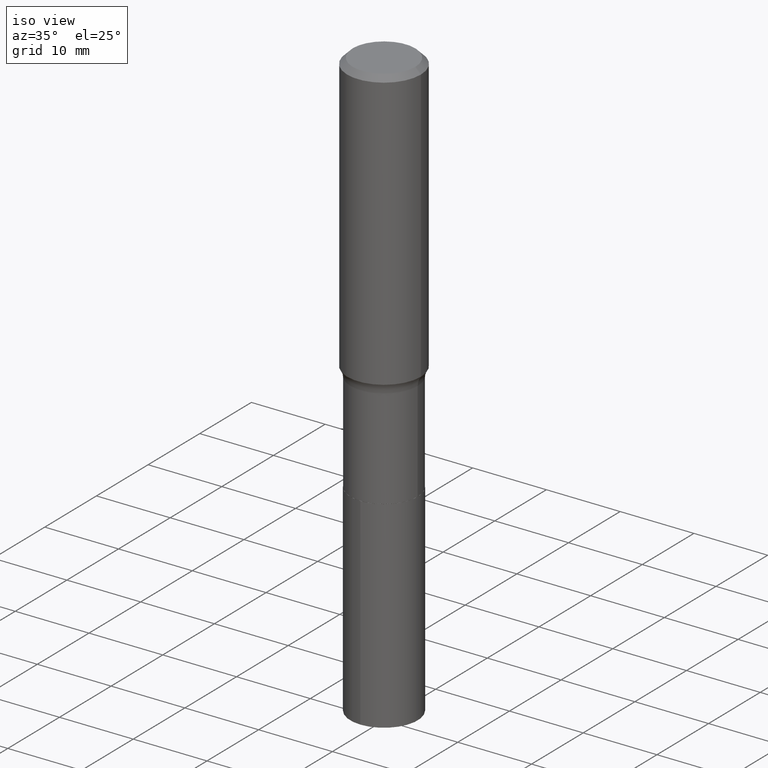
[diagram: clean part render]
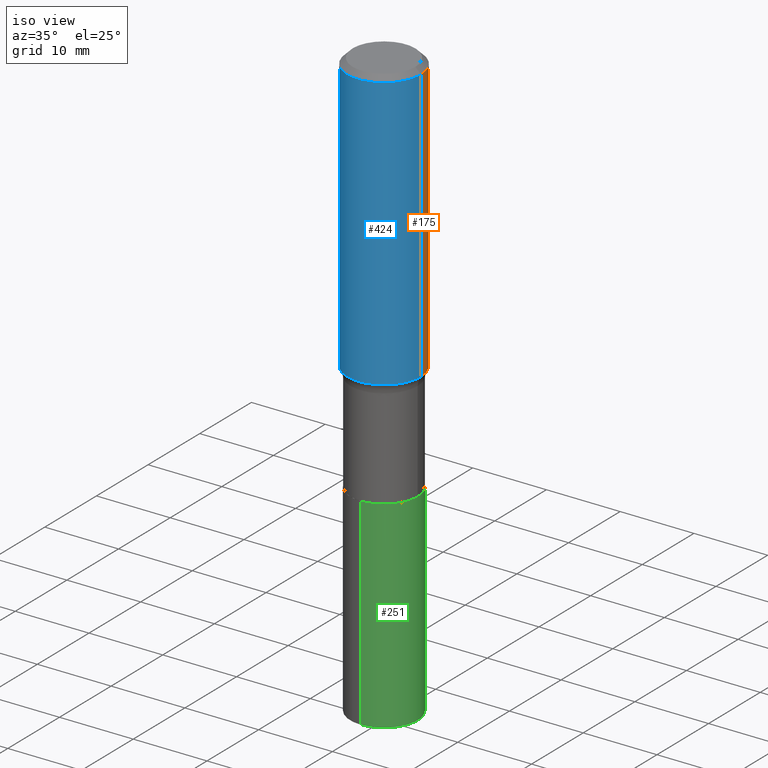
[diagram: same view with three faces highlighted in distinct colors, each labeled with its STEP entity id]
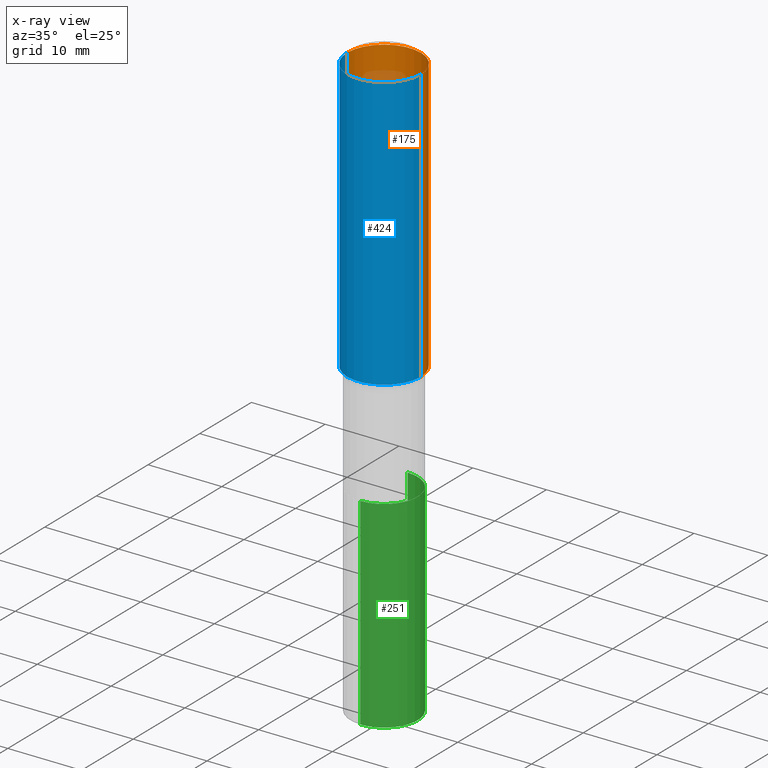
[diagram: x-ray of the same camera — body ghosted, the three highlighted faces saturated]
A machine part, iso view with three faces highlighted in distinct colors.
The next image is the same camera in x-ray (body ghosted, the three faces saturated) — at least one of them is partly hidden behind the body in this view.
Their STEP definitions:

[orange] entity #175 — the highlighted cylindrical surface (partial cylindrical patch) has radius 5 mm, axis along (-0, 0, 1).
#16 = DIRECTION ( 'NONE',  ( -2.445468806185136877E-29, 3.491481338843145188E-15, 1.000000000000000000 ) ) ;
#38 = VERTEX_POINT ( 'NONE', #92 ) ;
#48 = LINE ( 'NONE', #257, #168 ) ;
#51 = CARTESIAN_POINT ( 'NONE',  ( -0.1968500000000001082, 1.398703375343757985E-15, -9.682923725166787881E-30 ) ) ;
#57 = AXIS2_PLACEMENT_3D ( 'NONE', #219, #145, #438 ) ;
#60 = ORIENTED_EDGE ( 'NONE', *, *, #279, .T. ) ;
#61 = DIRECTION ( 'NONE',  ( -2.445468806185136597E-29, 3.491481338843145583E-15, 1.000000000000000000 ) ) ;
#71 = ORIENTED_EDGE ( 'NONE', *, *, #365, .T. ) ;
#92 = CARTESIAN_POINT ( 'NONE',  ( -0.1968500000000000250, -1.249116074655707760E-15, -0.02952750000000018207 ) ) ;
#99 = CIRCLE ( 'NONE', #232, 0.1968500000000000250 ) ;
#112 = VECTOR ( 'NONE', #117, 39.37007874015748143 ) ;
#117 = DIRECTION ( 'NONE',  ( -2.445468806185136877E-29, 3.491481338843145188E-15, 1.000000000000000000 ) ) ;
#126 = VERTEX_POINT ( 'NONE', #190 ) ;
#145 = DIRECTION ( 'NONE',  ( -2.445468806185136597E-29, 3.491481338843145583E-15, 1.000000000000000000 ) ) ;
#168 = VECTOR ( 'NONE', #16, 39.37007874015748143 ) ;
#175 = ADVANCED_FACE ( 'NONE', ( #390 ), #400, .T. ) ;
#179 = VERTEX_POINT ( 'NONE', #215 ) ;
#190 = CARTESIAN_POINT ( 'NONE',  ( 0.1968500000000000250, -1.477690918335233294E-15, -0.02952750000000018207 ) ) ;
#198 = CARTESIAN_POINT ( 'NONE',  ( 0.1968500000000001360, -6.567140387868782202E-15, -1.487203762769277127 ) ) ;
#215 = CARTESIAN_POINT ( 'NONE',  ( -0.1968500000000001360, -3.793840809422482017E-15, -1.487203762769277127 ) ) ;
#219 = CARTESIAN_POINT ( 'NONE',  ( 0.000000000000000000, 0.000000000000000000, 0.000000000000000000 ) ) ;
#232 = AXIS2_PLACEMENT_3D ( 'NONE', #368, #61, #350 ) ;
#257 = CARTESIAN_POINT ( 'NONE',  ( 0.1968500000000001082, -1.374596203102542397E-15, 9.598753983154305062E-30 ) ) ;
#264 = DIRECTION ( 'NONE',  ( -2.445468806185136597E-29, 3.491481338843145583E-15, 1.000000000000000000 ) ) ;
#275 = AXIS2_PLACEMENT_3D ( 'NONE', #306, #264, #405 ) ;
#279 = EDGE_CURVE ( 'NONE', #179, #38, #446, .T. ) ;
#280 = VERTEX_POINT ( 'NONE', #198 ) ;
#292 = ORIENTED_EDGE ( 'NONE', *, *, #381, .F. ) ;
#306 = CARTESIAN_POINT ( 'NONE',  ( 3.636910410293427302E-29, -5.192544184766240594E-15, -1.487203762769277127 ) ) ;
#328 = EDGE_LOOP ( 'NONE', ( #71, #60, #394, #292 ) ) ;
#338 = CIRCLE ( 'NONE', #275, 0.1968500000000001915 ) ;
#350 = DIRECTION ( 'NONE',  ( 1.000000000000000000, -6.982962677686265922E-15, 0.000000000000000000 ) ) ;
#365 = EDGE_CURVE ( 'NONE', #280, #179, #338, .T. ) ;
#368 = CARTESIAN_POINT ( 'NONE',  ( 7.220858017463206858E-31, -1.030947152326916240E-16, -0.02952750000000018207 ) ) ;
#381 = EDGE_CURVE ( 'NONE', #280, #126, #48, .T. ) ;
#390 = FACE_OUTER_BOUND ( 'NONE', #328, .T. ) ;
#394 = ORIENTED_EDGE ( 'NONE', *, *, #428, .F. ) ;
#400 = CYLINDRICAL_SURFACE ( 'NONE', #57, 0.1968500000000001082 ) ;
#405 = DIRECTION ( 'NONE',  ( 1.000000000000000000, -6.982962677686266711E-15, 0.000000000000000000 ) ) ;
#428 = EDGE_CURVE ( 'NONE', #126, #38, #99, .T. ) ;
#438 = DIRECTION ( 'NONE',  ( 1.000000000000000000, -6.982962677686266711E-15, 4.876176775795935793E-29 ) ) ;
#446 = LINE ( 'NONE', #51, #112 ) ;

[blue] entity #424 — the highlighted cylindrical surface (partial cylindrical patch) has radius 5 mm, axis along (-0, 0, 1).
#1 = ORIENTED_EDGE ( 'NONE', *, *, #279, .F. ) ;
#5 = AXIS2_PLACEMENT_3D ( 'NONE', #443, #333, #18 ) ;
#16 = DIRECTION ( 'NONE',  ( -2.445468806185136877E-29, 3.491481338843145188E-15, 1.000000000000000000 ) ) ;
#18 = DIRECTION ( 'NONE',  ( 1.000000000000000000, -6.982962677686266711E-15, 0.000000000000000000 ) ) ;
#38 = VERTEX_POINT ( 'NONE', #92 ) ;
#48 = LINE ( 'NONE', #257, #168 ) ;
#51 = CARTESIAN_POINT ( 'NONE',  ( -0.1968500000000001082, 1.398703375343757985E-15, -9.682923725166787881E-30 ) ) ;
#79 = DIRECTION ( 'NONE',  ( 1.000000000000000000, -6.982962677686266711E-15, 4.876176775795935793E-29 ) ) ;
#83 = DIRECTION ( 'NONE',  ( -2.445468806185136597E-29, 3.491481338843145583E-15, 1.000000000000000000 ) ) ;
#92 = CARTESIAN_POINT ( 'NONE',  ( -0.1968500000000000250, -1.249116074655707760E-15, -0.02952750000000018207 ) ) ;
#112 = VECTOR ( 'NONE', #117, 39.37007874015748143 ) ;
#114 = CARTESIAN_POINT ( 'NONE',  ( 0.000000000000000000, 0.000000000000000000, 0.000000000000000000 ) ) ;
#117 = DIRECTION ( 'NONE',  ( -2.445468806185136877E-29, 3.491481338843145188E-15, 1.000000000000000000 ) ) ;
#126 = VERTEX_POINT ( 'NONE', #190 ) ;
#168 = VECTOR ( 'NONE', #16, 39.37007874015748143 ) ;
#179 = VERTEX_POINT ( 'NONE', #215 ) ;
#180 = ORIENTED_EDGE ( 'NONE', *, *, #212, .T. ) ;
#190 = CARTESIAN_POINT ( 'NONE',  ( 0.1968500000000000250, -1.477690918335233294E-15, -0.02952750000000018207 ) ) ;
#196 = AXIS2_PLACEMENT_3D ( 'NONE', #114, #261, #79 ) ;
#198 = CARTESIAN_POINT ( 'NONE',  ( 0.1968500000000001360, -6.567140387868782202E-15, -1.487203762769277127 ) ) ;
#202 = CIRCLE ( 'NONE', #5, 0.1968500000000001915 ) ;
#209 = AXIS2_PLACEMENT_3D ( 'NONE', #298, #83, #340 ) ;
#212 = EDGE_CURVE ( 'NONE', #179, #280, #202, .T. ) ;
#214 = ORIENTED_EDGE ( 'NONE', *, *, #381, .T. ) ;
#215 = CARTESIAN_POINT ( 'NONE',  ( -0.1968500000000001360, -3.793840809422482017E-15, -1.487203762769277127 ) ) ;
#257 = CARTESIAN_POINT ( 'NONE',  ( 0.1968500000000001082, -1.374596203102542397E-15, 9.598753983154305062E-30 ) ) ;
#261 = DIRECTION ( 'NONE',  ( -2.445468806185136597E-29, 3.491481338843145583E-15, 1.000000000000000000 ) ) ;
#279 = EDGE_CURVE ( 'NONE', #179, #38, #446, .T. ) ;
#280 = VERTEX_POINT ( 'NONE', #198 ) ;
#294 = CIRCLE ( 'NONE', #209, 0.1968500000000000250 ) ;
#298 = CARTESIAN_POINT ( 'NONE',  ( 7.220858017463206858E-31, -1.030947152326916240E-16, -0.02952750000000018207 ) ) ;
#333 = DIRECTION ( 'NONE',  ( -2.445468806185136597E-29, 3.491481338843145583E-15, 1.000000000000000000 ) ) ;
#334 = ORIENTED_EDGE ( 'NONE', *, *, #367, .F. ) ;
#340 = DIRECTION ( 'NONE',  ( 1.000000000000000000, -6.982962677686265922E-15, 0.000000000000000000 ) ) ;
#362 = EDGE_LOOP ( 'NONE', ( #1, #180, #214, #334 ) ) ;
#367 = EDGE_CURVE ( 'NONE', #38, #126, #294, .T. ) ;
#381 = EDGE_CURVE ( 'NONE', #280, #126, #48, .T. ) ;
#403 = CYLINDRICAL_SURFACE ( 'NONE', #196, 0.1968500000000001082 ) ;
#424 = ADVANCED_FACE ( 'NONE', ( #440 ), #403, .T. ) ;
#440 = FACE_OUTER_BOUND ( 'NONE', #362, .T. ) ;
#443 = CARTESIAN_POINT ( 'NONE',  ( 3.636910410293427302E-29, -5.192544184766240594E-15, -1.487203762769277127 ) ) ;
#446 = LINE ( 'NONE', #51, #112 ) ;

[green] entity #251 — the highlighted cylindrical surface (partial cylindrical patch) has radius 4.5644 mm, axis along (-0, 0, 1).
#11 = CARTESIAN_POINT ( 'NONE',  ( 5.063587710086944476E-29, -7.229461260208617724E-15, -2.070600000000000218 ) ) ;
#12 = ORIENTED_EDGE ( 'NONE', *, *, #375, .T. ) ;
#39 = ORIENTED_EDGE ( 'NONE', *, *, #167, .T. ) ;
#67 = VERTEX_POINT ( 'NONE', #250 ) ;
#76 = VECTOR ( 'NONE', #229, 39.37007874015748143 ) ;
#90 = AXIS2_PLACEMENT_3D ( 'NONE', #421, #351, #206 ) ;
#107 = LINE ( 'NONE', #226, #282 ) ;
#137 = CARTESIAN_POINT ( 'NONE',  ( 1.276845296160963528E-15, 0.1796999999999890074, -3.149600000000001288 ) ) ;
#150 = CARTESIAN_POINT ( 'NONE',  ( 1.276845296160950511E-15, 0.1796999999999927544, -2.070600000000000662 ) ) ;
#152 = DIRECTION ( 'NONE',  ( -2.444718884993941855E-29, 3.492555268671800180E-15, 1.000000000000000000 ) ) ;
#153 = AXIS2_PLACEMENT_3D ( 'NONE', #11, #152, #265 ) ;
#154 = ORIENTED_EDGE ( 'NONE', *, *, #310, .F. ) ;
#158 = CARTESIAN_POINT ( 'NONE',  ( -1.254838393180145014E-15, -0.1797000000000109898, -3.149600000000000399 ) ) ;
#165 = FACE_OUTER_BOUND ( 'NONE', #356, .T. ) ;
#167 = EDGE_CURVE ( 'NONE', #304, #322, #455, .T. ) ;
#178 = CARTESIAN_POINT ( 'NONE',  ( 7.701439386995408199E-29, -1.099792839510549152E-14, -3.149600000000000843 ) ) ;
#186 = AXIS2_PLACEMENT_3D ( 'NONE', #178, #361, #256 ) ;
#189 = CARTESIAN_POINT ( 'NONE',  ( -1.254838393180171243E-15, -0.1797000000000072428, -2.070599999999999330 ) ) ;
#195 = CYLINDRICAL_SURFACE ( 'NONE', #153, 0.1796999999999999986 ) ;
#206 = DIRECTION ( 'NONE',  ( -6.982962677686265922E-15, -1.000000000000000000, 3.040454083098790380E-15 ) ) ;
#210 = EDGE_CURVE ( 'NONE', #304, #396, #107, .T. ) ;
#226 = CARTESIAN_POINT ( 'NONE',  ( -1.254838393180171243E-15, -0.1797000000000072428, -2.070599999999999330 ) ) ;
#229 = DIRECTION ( 'NONE',  ( -2.444718884993941575E-29, 3.492555268671800180E-15, 1.000000000000000000 ) ) ;
#250 = CARTESIAN_POINT ( 'NONE',  ( 1.276845296160976938E-15, 0.1796999999999927544, -2.070600000000000662 ) ) ;
#251 = ADVANCED_FACE ( 'NONE', ( #165 ), #195, .T. ) ;
#256 = DIRECTION ( 'NONE',  ( -6.982962677686265922E-15, -1.000000000000000000, 3.040454083098790380E-15 ) ) ;
#265 = DIRECTION ( 'NONE',  ( -6.982962677686265922E-15, -1.000000000000000000, 3.040454083098790380E-15 ) ) ;
#282 = VECTOR ( 'NONE', #364, 39.37007874015748143 ) ;
#302 = CIRCLE ( 'NONE', #90, 0.1796999999999999986 ) ;
#304 = VERTEX_POINT ( 'NONE', #158 ) ;
#310 = EDGE_CURVE ( 'NONE', #396, #67, #302, .T. ) ;
#322 = VERTEX_POINT ( 'NONE', #137 ) ;
#327 = ORIENTED_EDGE ( 'NONE', *, *, #210, .F. ) ;
#351 = DIRECTION ( 'NONE',  ( -2.444718884993941855E-29, 3.492555268671800180E-15, 1.000000000000000000 ) ) ;
#356 = EDGE_LOOP ( 'NONE', ( #39, #12, #154, #327 ) ) ;
#361 = DIRECTION ( 'NONE',  ( -2.444718884993941855E-29, 3.492555268671800180E-15, 1.000000000000000000 ) ) ;
#364 = DIRECTION ( 'NONE',  ( -2.444718884993941575E-29, 3.492555268671800180E-15, 1.000000000000000000 ) ) ;
#375 = EDGE_CURVE ( 'NONE', #322, #67, #447, .T. ) ;
#396 = VERTEX_POINT ( 'NONE', #189 ) ;
#421 = CARTESIAN_POINT ( 'NONE',  ( 5.063587710086944476E-29, -7.229461260208617724E-15, -2.070600000000000218 ) ) ;
#447 = LINE ( 'NONE', #150, #76 ) ;
#455 = CIRCLE ( 'NONE', #186, 0.1796999999999999986 ) ;